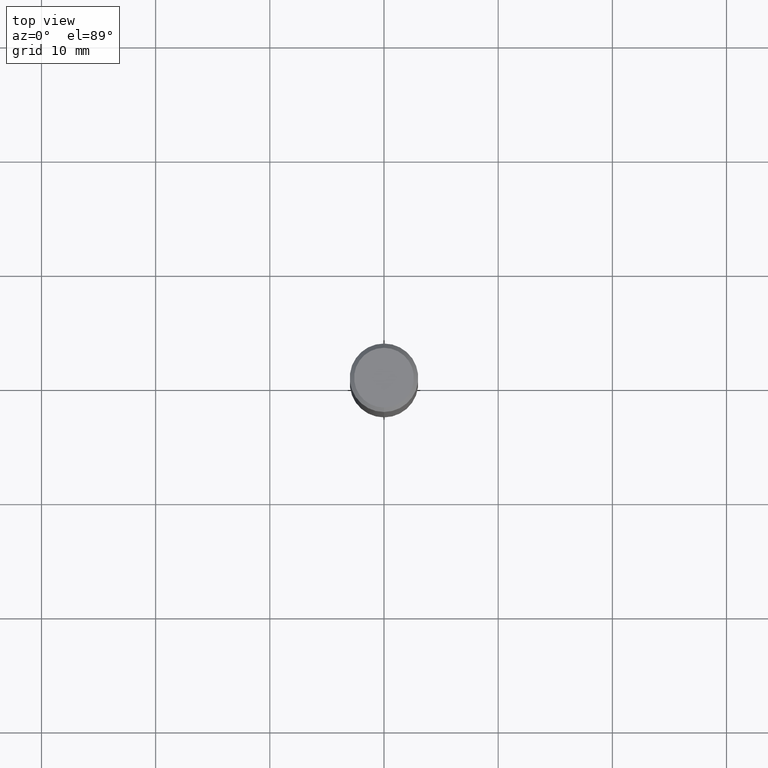
[diagram: clean part render]
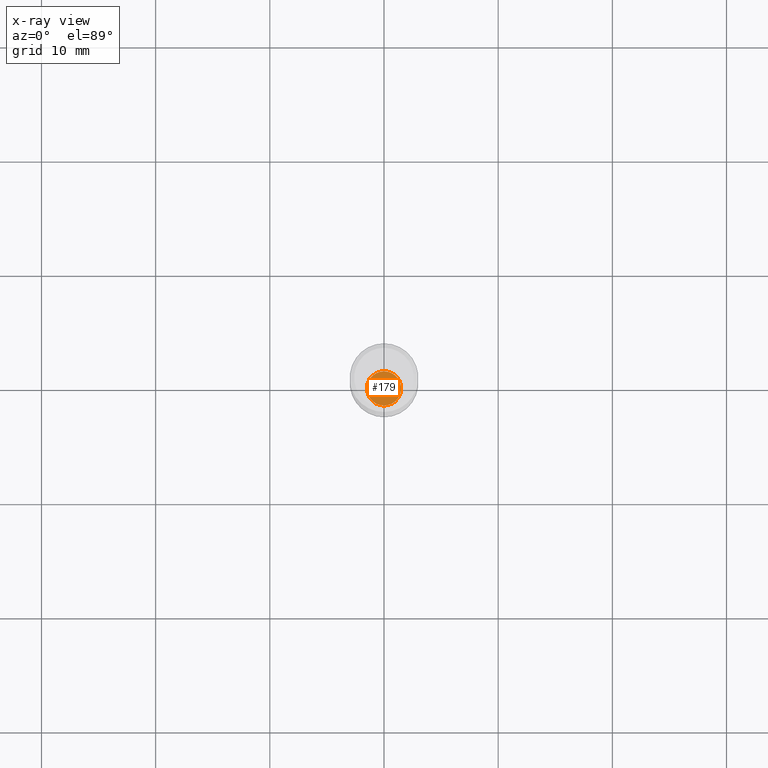
[diagram: x-ray — body ghosted, one internal face saturated and labeled with its STEP entity id]
A machine part, top view, then the same camera in x-ray: the body is ghosted and one INTERNAL B-rep face — a face not visible from any outside direction — is saturated and labeled: STEP entity #179.
In plain terms, the highlighted planar face has unit normal (-0, 0, 1).
Its self-contained STEP definition (entity closure, byte-faithful):
#19 = CARTESIAN_POINT ( 'NONE',  ( 4.123439461174264426E-16, 0.05904999999999250432, -2.145700000000000163 ) ) ;
#71 = EDGE_CURVE ( 'NONE', #433, #266, #439, .T. ) ;
#112 = DIRECTION ( 'NONE',  ( -6.982962677686265922E-15, -1.000000000000000000, 4.626330217890369336E-15 ) ) ;
#117 = DIRECTION ( 'NONE',  ( -2.445314574720221452E-29, 3.491702207079214016E-15, 1.000000000000000000 ) ) ;
#126 = AXIS2_PLACEMENT_3D ( 'NONE', #196, #117, #112 ) ;
#179 = ADVANCED_FACE ( 'NONE', ( #449 ), #402, .F. ) ;
#196 = CARTESIAN_POINT ( 'NONE',  ( 5.246911482977179404E-29, -7.492145425729869203E-15, -2.145700000000000163 ) ) ;
#204 = EDGE_LOOP ( 'NONE', ( #464, #562 ) ) ;
#240 = DIRECTION ( 'NONE',  ( -2.445314574720221172E-29, 3.491702207079214016E-15, 1.000000000000000000 ) ) ;
#257 = EDGE_CURVE ( 'NONE', #266, #433, #526, .T. ) ;
#266 = VERTEX_POINT ( 'NONE', #551 ) ;
#267 = AXIS2_PLACEMENT_3D ( 'NONE', #19, #240, #285 ) ;
#285 = DIRECTION ( 'NONE',  ( -6.982962677686265922E-15, -1.000000000000000000, 3.491702207079214016E-15 ) ) ;
#308 = DIRECTION ( 'NONE',  ( -2.445314574720221452E-29, 3.491702207079214016E-15, 1.000000000000000000 ) ) ;
#402 = PLANE ( 'NONE',  #267 ) ;
#426 = CARTESIAN_POINT ( 'NONE',  ( 5.246911482977179404E-29, -7.492145425729869203E-15, -2.145700000000000163 ) ) ;
#433 = VERTEX_POINT ( 'NONE', #532 ) ;
#439 = CIRCLE ( 'NONE', #525, 0.05904999999999999832 ) ;
#449 = FACE_OUTER_BOUND ( 'NONE', #204, .T. ) ;
#464 = ORIENTED_EDGE ( 'NONE', *, *, #257, .F. ) ;
#524 = DIRECTION ( 'NONE',  ( -6.982962677686265922E-15, -1.000000000000000000, 4.626330217890369336E-15 ) ) ;
#525 = AXIS2_PLACEMENT_3D ( 'NONE', #426, #308, #524 ) ;
#526 = CIRCLE ( 'NONE', #126, 0.05904999999999999832 ) ;
#532 = CARTESIAN_POINT ( 'NONE',  ( 4.195754854663917550E-16, 0.05904999999999253207, -2.145700000000000163 ) ) ;
#551 = CARTESIAN_POINT ( 'NONE',  ( -4.123439461173217214E-16, -0.05905000000000752008, -2.145699999999999719 ) ) ;
#562 = ORIENTED_EDGE ( 'NONE', *, *, #71, .F. ) ;